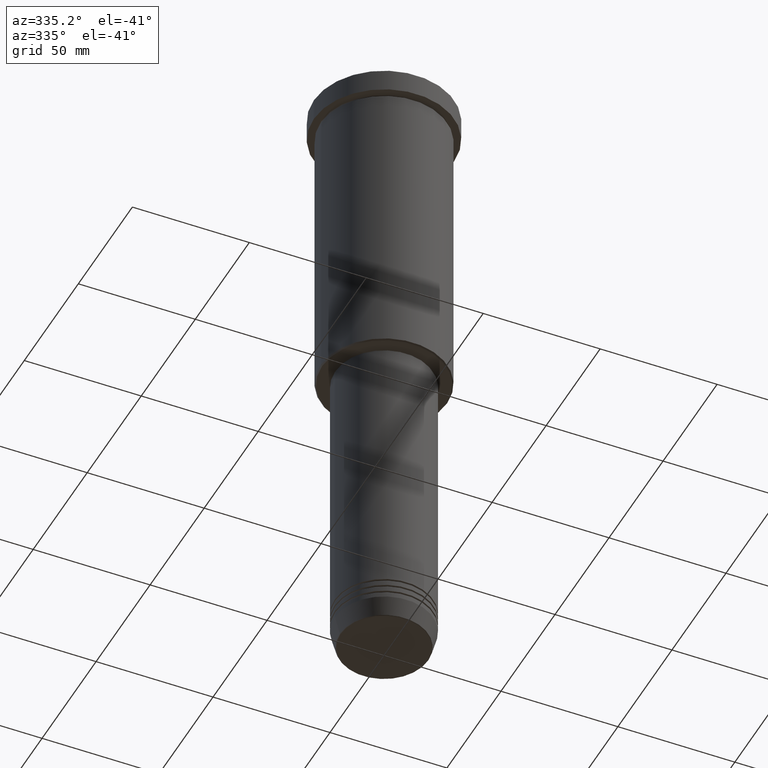
[diagram: clean part render]
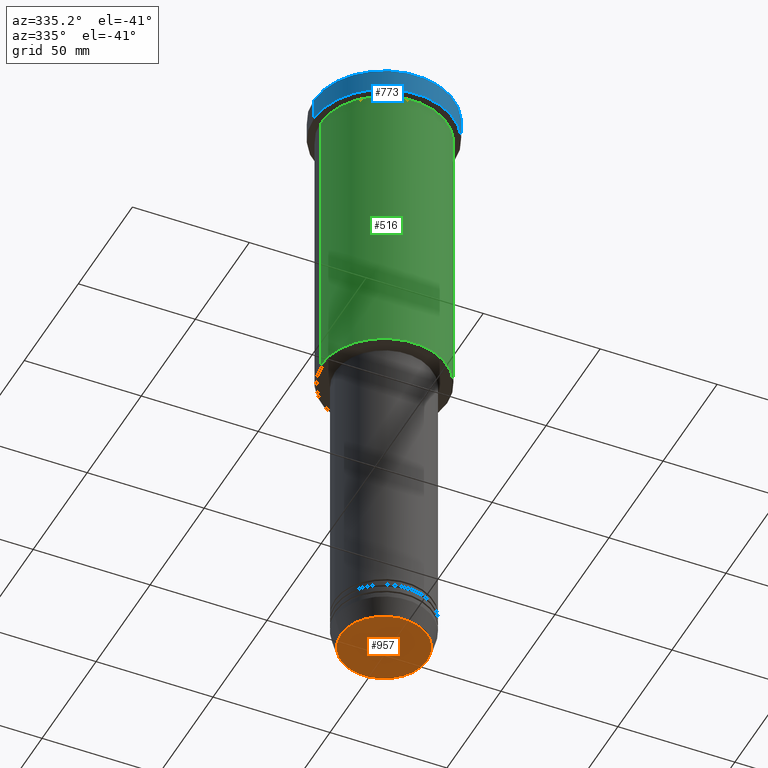
[diagram: same view with three faces highlighted in distinct colors, each labeled with its STEP entity id]
A machine part, auxiliary view with three faces highlighted in distinct colors.
Their STEP definitions:

[orange] entity #957 — the highlighted planar face has unit normal (0, -0, 1).
#111 = AXIS2_PLACEMENT_3D ( 'NONE', #1124, #313, #294 ) ;
#120 = FACE_OUTER_BOUND ( 'NONE', #440, .T. ) ;
#121 = EDGE_CURVE ( 'NONE', #1034, #961, #348, .T. ) ;
#127 = CIRCLE ( 'NONE', #111, 18.47274296656153680 ) ;
#131 = DIRECTION ( 'NONE',  ( 1.000000000000000000, 0.000000000000000000, 0.000000000000000000 ) ) ;
#140 = CARTESIAN_POINT ( 'NONE',  ( 0.000000000000000000, 0.000000000000000000, -271.0000000000000000 ) ) ;
#252 = AXIS2_PLACEMENT_3D ( 'NONE', #140, #954, #131 ) ;
#294 = DIRECTION ( 'NONE',  ( 1.000000000000000000, 0.000000000000000000, 0.000000000000000000 ) ) ;
#313 = DIRECTION ( 'NONE',  ( 0.000000000000000000, 0.000000000000000000, -1.000000000000000000 ) ) ;
#348 = CIRCLE ( 'NONE', #541, 18.47274296656153680 ) ;
#376 = EDGE_CURVE ( 'NONE', #961, #1034, #127, .T. ) ;
#440 = EDGE_LOOP ( 'NONE', ( #1002, #1126 ) ) ;
#541 = AXIS2_PLACEMENT_3D ( 'NONE', #693, #1047, #713 ) ;
#682 = PLANE ( 'NONE',  #252 ) ;
#693 = CARTESIAN_POINT ( 'NONE',  ( 0.000000000000000000, 0.000000000000000000, -271.0000000000000000 ) ) ;
#713 = DIRECTION ( 'NONE',  ( 1.000000000000000000, 0.000000000000000000, 0.000000000000000000 ) ) ;
#810 = CARTESIAN_POINT ( 'NONE',  ( 18.47274296656153680, 0.000000000000000000, -271.0000000000000000 ) ) ;
#863 = CARTESIAN_POINT ( 'NONE',  ( -18.47274296656153680, 2.291831503831603257E-15, -271.0000000000000000 ) ) ;
#954 = DIRECTION ( 'NONE',  ( 0.000000000000000000, -0.000000000000000000, 1.000000000000000000 ) ) ;
#957 = ADVANCED_FACE ( 'NONE', ( #120 ), #682, .F. ) ;
#961 = VERTEX_POINT ( 'NONE', #863 ) ;
#1002 = ORIENTED_EDGE ( 'NONE', *, *, #121, .T. ) ;
#1034 = VERTEX_POINT ( 'NONE', #810 ) ;
#1047 = DIRECTION ( 'NONE',  ( 0.000000000000000000, 0.000000000000000000, -1.000000000000000000 ) ) ;
#1124 = CARTESIAN_POINT ( 'NONE',  ( 0.000000000000000000, 0.000000000000000000, -271.0000000000000000 ) ) ;
#1126 = ORIENTED_EDGE ( 'NONE', *, *, #376, .T. ) ;

[blue] entity #773 — the highlighted cylindrical surface (partial cylindrical patch) has radius 30 mm, axis along (-0, -0, 1).
#2 = ORIENTED_EDGE ( 'NONE', *, *, #1071, .T. ) ;
#23 = VERTEX_POINT ( 'NONE', #912 ) ;
#75 = CARTESIAN_POINT ( 'NONE',  ( 30.00000000000000000, 0.000000000000000000, -0.4999999999999796274 ) ) ;
#114 = DIRECTION ( 'NONE',  ( 1.000000000000000000, 0.000000000000000000, 0.000000000000000000 ) ) ;
#147 = CIRCLE ( 'NONE', #822, 30.00000000000000000 ) ;
#207 = AXIS2_PLACEMENT_3D ( 'NONE', #851, #576, #114 ) ;
#235 = CARTESIAN_POINT ( 'NONE',  ( 0.000000000000000000, 0.000000000000000000, -0.4999999999999796274 ) ) ;
#246 = EDGE_CURVE ( 'NONE', #639, #23, #615, .T. ) ;
#270 = CIRCLE ( 'NONE', #207, 30.00000000000000000 ) ;
#279 = EDGE_CURVE ( 'NONE', #1160, #23, #147, .T. ) ;
#311 = ORIENTED_EDGE ( 'NONE', *, *, #757, .T. ) ;
#333 = DIRECTION ( 'NONE',  ( 1.000000000000000000, 0.000000000000000000, 0.000000000000000000 ) ) ;
#357 = CARTESIAN_POINT ( 'NONE',  ( 30.00000000000000000, 0.000000000000000000, 0.000000000000000000 ) ) ;
#415 = ORIENTED_EDGE ( 'NONE', *, *, #279, .T. ) ;
#476 = CARTESIAN_POINT ( 'NONE',  ( 0.000000000000000000, 0.000000000000000000, 0.000000000000000000 ) ) ;
#576 = DIRECTION ( 'NONE',  ( -0.000000000000000000, -0.000000000000000000, 1.000000000000000000 ) ) ;
#593 = FACE_OUTER_BOUND ( 'NONE', #602, .T. ) ;
#602 = EDGE_LOOP ( 'NONE', ( #1165, #311, #2, #415 ) ) ;
#615 = LINE ( 'NONE', #736, #962 ) ;
#639 = VERTEX_POINT ( 'NONE', #839 ) ;
#641 = DIRECTION ( 'NONE',  ( -0.000000000000000000, -0.000000000000000000, 1.000000000000000000 ) ) ;
#710 = LINE ( 'NONE', #357, #1062 ) ;
#736 = CARTESIAN_POINT ( 'NONE',  ( -30.00000000000000000, 3.673940397442059178E-15, 0.000000000000000000 ) ) ;
#757 = EDGE_CURVE ( 'NONE', #639, #871, #270, .T. ) ;
#773 = ADVANCED_FACE ( 'NONE', ( #593 ), #849, .T. ) ;
#775 = CARTESIAN_POINT ( 'NONE',  ( 30.00000000000000000, 0.000000000000000000, -9.999999999999992895 ) ) ;
#822 = AXIS2_PLACEMENT_3D ( 'NONE', #235, #946, #333 ) ;
#839 = CARTESIAN_POINT ( 'NONE',  ( -30.00000000000000000, 3.673940397442059178E-15, -9.999999999999992895 ) ) ;
#840 = DIRECTION ( 'NONE',  ( 1.000000000000000000, 0.000000000000000000, 0.000000000000000000 ) ) ;
#849 = CYLINDRICAL_SURFACE ( 'NONE', #965, 30.00000000000000000 ) ;
#851 = CARTESIAN_POINT ( 'NONE',  ( 0.000000000000000000, 0.000000000000000000, -9.999999999999992895 ) ) ;
#871 = VERTEX_POINT ( 'NONE', #775 ) ;
#912 = CARTESIAN_POINT ( 'NONE',  ( -30.00000000000000000, 3.673940397442059178E-15, -0.4999999999999796274 ) ) ;
#946 = DIRECTION ( 'NONE',  ( 0.000000000000000000, 0.000000000000000000, -1.000000000000000000 ) ) ;
#959 = DIRECTION ( 'NONE',  ( -0.000000000000000000, -0.000000000000000000, 1.000000000000000000 ) ) ;
#962 = VECTOR ( 'NONE', #641, 1000.000000000000000 ) ;
#965 = AXIS2_PLACEMENT_3D ( 'NONE', #476, #1117, #840 ) ;
#1062 = VECTOR ( 'NONE', #959, 1000.000000000000000 ) ;
#1071 = EDGE_CURVE ( 'NONE', #871, #1160, #710, .T. ) ;
#1117 = DIRECTION ( 'NONE',  ( -0.000000000000000000, -0.000000000000000000, 1.000000000000000000 ) ) ;
#1160 = VERTEX_POINT ( 'NONE', #75 ) ;
#1165 = ORIENTED_EDGE ( 'NONE', *, *, #246, .F. ) ;

[green] entity #516 — the highlighted cylindrical surface (partial cylindrical patch) has radius 27 mm, axis along (-0, -0, 1).
#20 = CARTESIAN_POINT ( 'NONE',  ( -27.00000000000000355, 3.306546357697854128E-15, 0.000000000000000000 ) ) ;
#49 = ORIENTED_EDGE ( 'NONE', *, *, #742, .T. ) ;
#84 = VERTEX_POINT ( 'NONE', #653 ) ;
#89 = CARTESIAN_POINT ( 'NONE',  ( -27.00000000000000355, 3.306546357697854128E-15, -135.4999999999999432 ) ) ;
#99 = CIRCLE ( 'NONE', #1119, 27.00000000000000355 ) ;
#101 = CARTESIAN_POINT ( 'NONE',  ( 0.000000000000000000, 0.000000000000000000, 0.000000000000000000 ) ) ;
#171 = CYLINDRICAL_SURFACE ( 'NONE', #205, 27.00000000000000355 ) ;
#186 = CARTESIAN_POINT ( 'NONE',  ( -27.00000000000000355, 3.306546357697854128E-15, -10.99999999999999289 ) ) ;
#187 = DIRECTION ( 'NONE',  ( -0.000000000000000000, -0.000000000000000000, 1.000000000000000000 ) ) ;
#205 = AXIS2_PLACEMENT_3D ( 'NONE', #101, #187, #287 ) ;
#271 = ORIENTED_EDGE ( 'NONE', *, *, #654, .F. ) ;
#287 = DIRECTION ( 'NONE',  ( 1.000000000000000000, 0.000000000000000000, 0.000000000000000000 ) ) ;
#301 = DIRECTION ( 'NONE',  ( -0.000000000000000000, -0.000000000000000000, 1.000000000000000000 ) ) ;
#360 = FACE_OUTER_BOUND ( 'NONE', #573, .T. ) ;
#395 = LINE ( 'NONE', #754, #784 ) ;
#454 = VERTEX_POINT ( 'NONE', #89 ) ;
#505 = DIRECTION ( 'NONE',  ( -1.000000000000000000, 0.000000000000000000, 0.000000000000000000 ) ) ;
#516 = ADVANCED_FACE ( 'NONE', ( #360 ), #171, .T. ) ;
#573 = EDGE_LOOP ( 'NONE', ( #271, #869, #49, #1129 ) ) ;
#598 = CIRCLE ( 'NONE', #929, 27.00000000000000355 ) ;
#599 = DIRECTION ( 'NONE',  ( -0.000000000000000000, -0.000000000000000000, 1.000000000000000000 ) ) ;
#620 = VERTEX_POINT ( 'NONE', #916 ) ;
#653 = CARTESIAN_POINT ( 'NONE',  ( 27.00000000000000355, 0.000000000000000000, -135.4999999999999432 ) ) ;
#654 = EDGE_CURVE ( 'NONE', #454, #1172, #1011, .T. ) ;
#668 = DIRECTION ( 'NONE',  ( -0.000000000000000000, -0.000000000000000000, 1.000000000000000000 ) ) ;
#742 = EDGE_CURVE ( 'NONE', #84, #620, #395, .T. ) ;
#754 = CARTESIAN_POINT ( 'NONE',  ( 27.00000000000000355, 0.000000000000000000, 0.000000000000000000 ) ) ;
#784 = VECTOR ( 'NONE', #301, 1000.000000000000000 ) ;
#791 = EDGE_CURVE ( 'NONE', #1172, #620, #99, .T. ) ;
#869 = ORIENTED_EDGE ( 'NONE', *, *, #953, .T. ) ;
#906 = CARTESIAN_POINT ( 'NONE',  ( 0.000000000000000000, 0.000000000000000000, -10.99999999999999289 ) ) ;
#916 = CARTESIAN_POINT ( 'NONE',  ( 27.00000000000000355, 0.000000000000000000, -10.99999999999999289 ) ) ;
#929 = AXIS2_PLACEMENT_3D ( 'NONE', #1128, #940, #505 ) ;
#940 = DIRECTION ( 'NONE',  ( -0.000000000000000000, -0.000000000000000000, 1.000000000000000000 ) ) ;
#953 = EDGE_CURVE ( 'NONE', #454, #84, #598, .T. ) ;
#983 = VECTOR ( 'NONE', #599, 1000.000000000000000 ) ;
#1011 = LINE ( 'NONE', #20, #983 ) ;
#1119 = AXIS2_PLACEMENT_3D ( 'NONE', #906, #668, #1143 ) ;
#1128 = CARTESIAN_POINT ( 'NONE',  ( 0.000000000000000000, 0.000000000000000000, -135.4999999999999432 ) ) ;
#1129 = ORIENTED_EDGE ( 'NONE', *, *, #791, .F. ) ;
#1143 = DIRECTION ( 'NONE',  ( 1.000000000000000000, 0.000000000000000000, 0.000000000000000000 ) ) ;
#1172 = VERTEX_POINT ( 'NONE', #186 ) ;